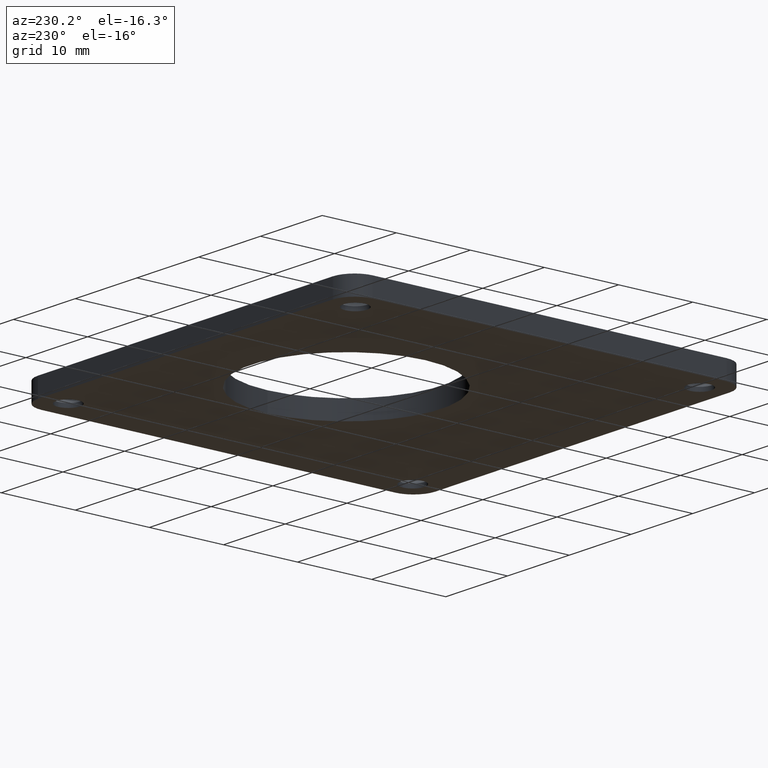
[diagram: clean part render]
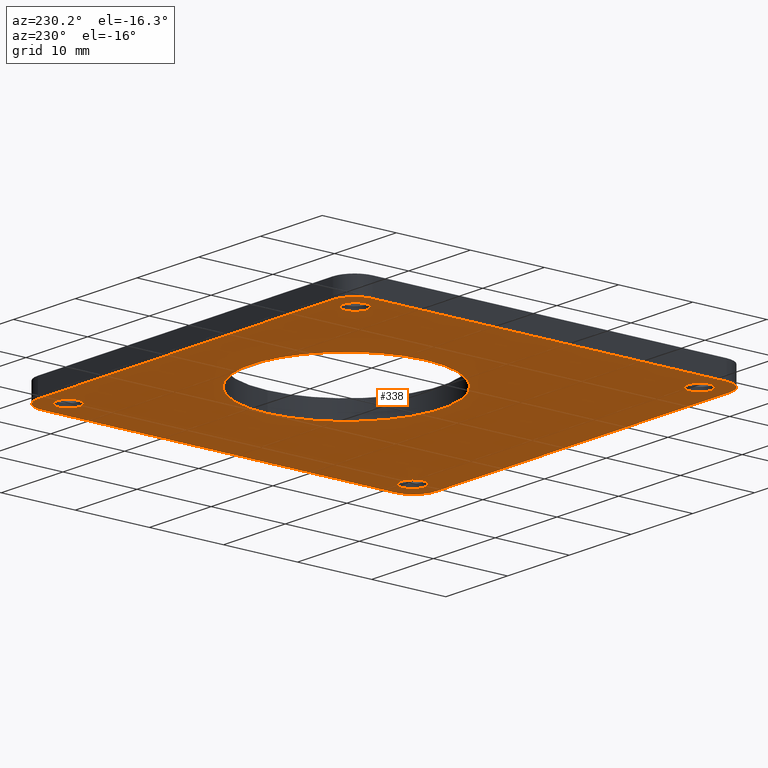
[diagram: same view with one face highlighted and labeled with its STEP entity id]
A machine part, auxiliary view. The second image highlights one B-rep face of the part: STEP entity #338.
In plain terms, the highlighted planar face has unit normal (-0, 0, -1).
Its self-contained STEP definition (entity closure, byte-faithful):
#7 = DIRECTION ( 'NONE',  ( 1.000000000000000000, 0.0000000000000000000, 0.0000000000000000000 ) ) ;
#11 = VECTOR ( 'NONE', #581, 39.37007874015748100 ) ;
#15 = VECTOR ( 'NONE', #700, 39.37007874015748100 ) ;
#17 = ORIENTED_EDGE ( 'NONE', *, *, #53, .F. ) ;
#19 = CARTESIAN_POINT ( 'NONE',  ( -0.9399999999999999500, -1.055000000000000200, -0.04921259842519685300 ) ) ;
#22 = EDGE_CURVE ( 'NONE', #772, #792, #690, .T. ) ;
#23 = DIRECTION ( 'NONE',  ( 0.0000000000000000000, 0.0000000000000000000, 1.000000000000000000 ) ) ;
#38 = CARTESIAN_POINT ( 'NONE',  ( -0.5040000000000000000, 0.2000000000000000900, -0.04921259842519685300 ) ) ;
#39 = DIRECTION ( 'NONE',  ( 0.0000000000000000000, 0.0000000000000000000, 1.000000000000000000 ) ) ;
#53 = EDGE_CURVE ( 'NONE', #259, #779, #760, .T. ) ;
#59 = CARTESIAN_POINT ( 'NONE',  ( 0.9149999999999999200, 0.9149999999999999200, -0.04921259842519683200 ) ) ;
#65 = ORIENTED_EDGE ( 'NONE', *, *, #791, .F. ) ;
#70 = EDGE_CURVE ( 'NONE', #493, #901, #165, .T. ) ;
#77 = EDGE_LOOP ( 'NONE', ( #337, #327 ) ) ;
#82 = VERTEX_POINT ( 'NONE', #673 ) ;
#89 = CARTESIAN_POINT ( 'NONE',  ( 0.9150000000000002600, -0.9150000000000002600, -0.04921259842519683200 ) ) ;
#92 = DIRECTION ( 'NONE',  ( 1.000000000000000000, 0.0000000000000000000, 0.0000000000000000000 ) ) ;
#95 = EDGE_CURVE ( 'NONE', #405, #567, #662, .T. ) ;
#97 = CARTESIAN_POINT ( 'NONE',  ( 0.9399999999999999500, 1.055000000000000200, -0.04921259842519685300 ) ) ;
#106 = AXIS2_PLACEMENT_3D ( 'NONE', #575, #23, #720 ) ;
#114 = EDGE_CURVE ( 'NONE', #853, #405, #919, .T. ) ;
#119 = DIRECTION ( 'NONE',  ( -0.0000000000000000000, -0.0000000000000000000, 1.000000000000000000 ) ) ;
#121 = CARTESIAN_POINT ( 'NONE',  ( 1.054999999999999700, 0.9399999999999999500, -0.04921259842519685300 ) ) ;
#125 = LINE ( 'NONE', #856, #346 ) ;
#126 = CARTESIAN_POINT ( 'NONE',  ( 0.9399999999999999500, -0.9399999999999999500, -0.04921259842519685300 ) ) ;
#127 = EDGE_CURVE ( 'NONE', #382, #293, #540, .T. ) ;
#129 = EDGE_CURVE ( 'NONE', #792, #772, #889, .T. ) ;
#131 = ORIENTED_EDGE ( 'NONE', *, *, #213, .T. ) ;
#137 = EDGE_CURVE ( 'NONE', #82, #872, #258, .T. ) ;
#139 = ORIENTED_EDGE ( 'NONE', *, *, #70, .T. ) ;
#148 = DIRECTION ( 'NONE',  ( -0.0000000000000000000, -0.0000000000000000000, 1.000000000000000000 ) ) ;
#150 = AXIS2_PLACEMENT_3D ( 'NONE', #89, #148, #92 ) ;
#165 = CIRCLE ( 'NONE', #150, 0.06299999999999998700 ) ;
#166 = DIRECTION ( 'NONE',  ( 0.0000000000000000000, 0.0000000000000000000, 1.000000000000000000 ) ) ;
#168 = CARTESIAN_POINT ( 'NONE',  ( 0.9150000000000002600, -0.9150000000000002600, -0.04921259842519683200 ) ) ;
#170 = CARTESIAN_POINT ( 'NONE',  ( -0.9399999999999999500, 0.9399999999999999500, -0.04921259842519685300 ) ) ;
#171 = EDGE_LOOP ( 'NONE', ( #652, #884 ) ) ;
#172 = ORIENTED_EDGE ( 'NONE', *, *, #478, .F. ) ;
#179 = AXIS2_PLACEMENT_3D ( 'NONE', #660, #39, #740 ) ;
#180 = DIRECTION ( 'NONE',  ( -0.0000000000000000000, -0.0000000000000000000, 1.000000000000000000 ) ) ;
#192 = DIRECTION ( 'NONE',  ( 0.0000000000000000000, 0.0000000000000000000, 1.000000000000000000 ) ) ;
#193 = CARTESIAN_POINT ( 'NONE',  ( 0.9399999999999999500, 0.9399999999999999500, -0.04921259842519685300 ) ) ;
#201 = DIRECTION ( 'NONE',  ( 1.000000000000000000, 0.0000000000000000000, 0.0000000000000000000 ) ) ;
#207 = CIRCLE ( 'NONE', #618, 0.5040000000000000000 ) ;
#212 = AXIS2_PLACEMENT_3D ( 'NONE', #168, #469, #7 ) ;
#213 = EDGE_CURVE ( 'NONE', #901, #493, #879, .T. ) ;
#219 = VERTEX_POINT ( 'NONE', #97 ) ;
#224 = FACE_BOUND ( 'NONE', #473, .T. ) ;
#228 = AXIS2_PLACEMENT_3D ( 'NONE', #126, #192, #859 ) ;
#232 = AXIS2_PLACEMENT_3D ( 'NONE', #818, #329, #735 ) ;
#233 = CARTESIAN_POINT ( 'NONE',  ( -0.8520000000000002000, 0.9149999999999999200, -0.04921259842519683200 ) ) ;
#237 = CARTESIAN_POINT ( 'NONE',  ( -0.9399999999999999500, -1.055000000000000200, -0.04921259842519685300 ) ) ;
#248 = CARTESIAN_POINT ( 'NONE',  ( 0.9399999999999999500, -1.054999999999999700, -0.04921259842519685300 ) ) ;
#258 = CIRCLE ( 'NONE', #261, 0.06299999999999998700 ) ;
#259 = VERTEX_POINT ( 'NONE', #657 ) ;
#260 = VECTOR ( 'NONE', #780, 39.37007874015748100 ) ;
#261 = AXIS2_PLACEMENT_3D ( 'NONE', #425, #119, #596 ) ;
#293 = VERTEX_POINT ( 'NONE', #616 ) ;
#295 = CARTESIAN_POINT ( 'NONE',  ( 1.054999999999999500, 0.9399999999999999500, -0.04921259842519685300 ) ) ;
#303 = VERTEX_POINT ( 'NONE', #839 ) ;
#304 = DIRECTION ( 'NONE',  ( -1.000000000000000000, -0.0000000000000000000, -0.0000000000000000000 ) ) ;
#327 = ORIENTED_EDGE ( 'NONE', *, *, #127, .T. ) ;
#329 = DIRECTION ( 'NONE',  ( -0.0000000000000000000, -0.0000000000000000000, 1.000000000000000000 ) ) ;
#331 = EDGE_CURVE ( 'NONE', #872, #82, #773, .T. ) ;
#337 = ORIENTED_EDGE ( 'NONE', *, *, #396, .T. ) ;
#338 = ADVANCED_FACE ( 'NONE', ( #352, #891, #360, #475, #224, #559 ), #549, .T. ) ;
#346 = VECTOR ( 'NONE', #304, 39.37007874015748100 ) ;
#349 = CARTESIAN_POINT ( 'NONE',  ( 0.8520000000000002000, -0.9150000000000002600, -0.04921259842519683200 ) ) ;
#352 = FACE_BOUND ( 'NONE', #77, .T. ) ;
#359 = EDGE_LOOP ( 'NONE', ( #892, #411 ) ) ;
#360 = FACE_BOUND ( 'NONE', #667, .T. ) ;
#382 = VERTEX_POINT ( 'NONE', #38 ) ;
#389 = CARTESIAN_POINT ( 'NONE',  ( 0.0000000000000000000, 0.2000000000000000100, -0.04921259842519685300 ) ) ;
#392 = AXIS2_PLACEMENT_3D ( 'NONE', #765, #722, #698 ) ;
#396 = EDGE_CURVE ( 'NONE', #293, #382, #207, .T. ) ;
#405 = VERTEX_POINT ( 'NONE', #248 ) ;
#411 = ORIENTED_EDGE ( 'NONE', *, *, #137, .T. ) ;
#418 = CIRCLE ( 'NONE', #474, 0.1149999999999998700 ) ;
#425 = CARTESIAN_POINT ( 'NONE',  ( -0.9150000000000002600, 0.9149999999999999200, -0.04921259842519683200 ) ) ;
#437 = CIRCLE ( 'NONE', #783, 0.1149999999999998700 ) ;
#438 = ORIENTED_EDGE ( 'NONE', *, *, #914, .F. ) ;
#442 = AXIS2_PLACEMENT_3D ( 'NONE', #645, #823, #583 ) ;
#449 = CARTESIAN_POINT ( 'NONE',  ( -1.054999999999999700, -0.9399999999999999500, -0.04921259842519685300 ) ) ;
#450 = DIRECTION ( 'NONE',  ( -1.000000000000000000, 0.0000000000000000000, 0.0000000000000000000 ) ) ;
#464 = VERTEX_POINT ( 'NONE', #504 ) ;
#469 = DIRECTION ( 'NONE',  ( -0.0000000000000000000, -0.0000000000000000000, 1.000000000000000000 ) ) ;
#473 = EDGE_LOOP ( 'NONE', ( #650, #907 ) ) ;
#474 = AXIS2_PLACEMENT_3D ( 'NONE', #170, #166, #450 ) ;
#475 = FACE_BOUND ( 'NONE', #171, .T. ) ;
#478 = EDGE_CURVE ( 'NONE', #567, #851, #558, .T. ) ;
#479 = VERTEX_POINT ( 'NONE', #561 ) ;
#493 = VERTEX_POINT ( 'NONE', #349 ) ;
#494 = DIRECTION ( 'NONE',  ( -0.0000000000000000000, -0.0000000000000000000, 1.000000000000000000 ) ) ;
#504 = CARTESIAN_POINT ( 'NONE',  ( -0.9399999999999999500, 1.055000000000000200, -0.04921259842519685300 ) ) ;
#509 = ORIENTED_EDGE ( 'NONE', *, *, #114, .F. ) ;
#514 = CIRCLE ( 'NONE', #179, 0.1149999999999998700 ) ;
#525 = AXIS2_PLACEMENT_3D ( 'NONE', #59, #653, #201 ) ;
#540 = CIRCLE ( 'NONE', #106, 0.5040000000000000000 ) ;
#549 = PLANE ( 'NONE',  #442 ) ;
#558 = LINE ( 'NONE', #295, #15 ) ;
#559 = FACE_OUTER_BOUND ( 'NONE', #719, .T. ) ;
#561 = CARTESIAN_POINT ( 'NONE',  ( 0.9779999999999998700, 0.9149999999999999200, -0.04921259842519683200 ) ) ;
#567 = VERTEX_POINT ( 'NONE', #602 ) ;
#574 = CARTESIAN_POINT ( 'NONE',  ( 0.9780000000000002000, -0.9150000000000002600, -0.04921259842519683200 ) ) ;
#575 = CARTESIAN_POINT ( 'NONE',  ( 0.0000000000000000000, 0.2000000000000000100, -0.04921259842519685300 ) ) ;
#580 = AXIS2_PLACEMENT_3D ( 'NONE', #710, #494, #726 ) ;
#581 = DIRECTION ( 'NONE',  ( 0.0000000000000000000, -1.000000000000000000, 0.0000000000000000000 ) ) ;
#583 = DIRECTION ( 'NONE',  ( -1.000000000000000000, 0.0000000000000000000, 0.0000000000000000000 ) ) ;
#592 = AXIS2_PLACEMENT_3D ( 'NONE', #732, #180, #661 ) ;
#593 = CIRCLE ( 'NONE', #592, 0.06299999999999998700 ) ;
#596 = DIRECTION ( 'NONE',  ( 1.000000000000000000, 0.0000000000000000000, 0.0000000000000000000 ) ) ;
#597 = DIRECTION ( 'NONE',  ( 0.0000000000000000000, 0.0000000000000000000, 1.000000000000000000 ) ) ;
#599 = CIRCLE ( 'NONE', #525, 0.06299999999999998700 ) ;
#602 = CARTESIAN_POINT ( 'NONE',  ( 1.054999999999999500, -0.9399999999999999500, -0.04921259842519685300 ) ) ;
#607 = EDGE_CURVE ( 'NONE', #479, #303, #593, .T. ) ;
#616 = CARTESIAN_POINT ( 'NONE',  ( 0.5040000000000000000, 0.2000000000000000100, -0.04921259842519685300 ) ) ;
#618 = AXIS2_PLACEMENT_3D ( 'NONE', #389, #789, #801 ) ;
#644 = CARTESIAN_POINT ( 'NONE',  ( -1.054999999999999500, 0.9399999999999999500, -0.04921259842519685300 ) ) ;
#645 = CARTESIAN_POINT ( 'NONE',  ( -0.9399999999999999500, 0.9399999999999999500, -0.04921259842519685300 ) ) ;
#650 = ORIENTED_EDGE ( 'NONE', *, *, #129, .T. ) ;
#652 = ORIENTED_EDGE ( 'NONE', *, *, #607, .T. ) ;
#653 = DIRECTION ( 'NONE',  ( -0.0000000000000000000, -0.0000000000000000000, 1.000000000000000000 ) ) ;
#657 = CARTESIAN_POINT ( 'NONE',  ( -1.054999999999999500, 0.9399999999999999500, -0.04921259842519685300 ) ) ;
#660 = CARTESIAN_POINT ( 'NONE',  ( -0.9399999999999999500, -0.9399999999999999500, -0.04921259842519685300 ) ) ;
#661 = DIRECTION ( 'NONE',  ( 1.000000000000000000, 0.0000000000000000000, 0.0000000000000000000 ) ) ;
#662 = CIRCLE ( 'NONE', #228, 0.1149999999999998700 ) ;
#667 = EDGE_LOOP ( 'NONE', ( #131, #139 ) ) ;
#673 = CARTESIAN_POINT ( 'NONE',  ( -0.9780000000000002000, 0.9149999999999999200, -0.04921259842519683200 ) ) ;
#681 = ORIENTED_EDGE ( 'NONE', *, *, #750, .F. ) ;
#690 = CIRCLE ( 'NONE', #580, 0.06299999999999998700 ) ;
#697 = EDGE_CURVE ( 'NONE', #851, #219, #437, .T. ) ;
#698 = DIRECTION ( 'NONE',  ( 1.000000000000000000, 0.0000000000000000000, 0.0000000000000000000 ) ) ;
#700 = DIRECTION ( 'NONE',  ( -0.0000000000000000000, 1.000000000000000000, -0.0000000000000000000 ) ) ;
#710 = CARTESIAN_POINT ( 'NONE',  ( -0.9150000000000002600, -0.9150000000000002600, -0.04921259842519683200 ) ) ;
#719 = EDGE_LOOP ( 'NONE', ( #65, #438, #738, #172, #803, #509, #681, #17 ) ) ;
#720 = DIRECTION ( 'NONE',  ( 1.000000000000000000, 0.0000000000000000000, 0.0000000000000000000 ) ) ;
#722 = DIRECTION ( 'NONE',  ( -0.0000000000000000000, -0.0000000000000000000, 1.000000000000000000 ) ) ;
#726 = DIRECTION ( 'NONE',  ( 1.000000000000000000, 0.0000000000000000000, 0.0000000000000000000 ) ) ;
#732 = CARTESIAN_POINT ( 'NONE',  ( 0.9149999999999999200, 0.9149999999999999200, -0.04921259842519683200 ) ) ;
#735 = DIRECTION ( 'NONE',  ( 1.000000000000000000, 0.0000000000000000000, 0.0000000000000000000 ) ) ;
#738 = ORIENTED_EDGE ( 'NONE', *, *, #697, .F. ) ;
#740 = DIRECTION ( 'NONE',  ( 1.000000000000000000, 0.0000000000000000000, 0.0000000000000000000 ) ) ;
#747 = DIRECTION ( 'NONE',  ( -1.000000000000000000, 0.0000000000000000000, 0.0000000000000000000 ) ) ;
#750 = EDGE_CURVE ( 'NONE', #779, #853, #514, .T. ) ;
#760 = LINE ( 'NONE', #644, #11 ) ;
#765 = CARTESIAN_POINT ( 'NONE',  ( -0.9150000000000002600, -0.9150000000000002600, -0.04921259842519683200 ) ) ;
#772 = VERTEX_POINT ( 'NONE', #825 ) ;
#773 = CIRCLE ( 'NONE', #232, 0.06299999999999998700 ) ;
#779 = VERTEX_POINT ( 'NONE', #449 ) ;
#780 = DIRECTION ( 'NONE',  ( 1.000000000000000000, 0.0000000000000000000, 0.0000000000000000000 ) ) ;
#783 = AXIS2_PLACEMENT_3D ( 'NONE', #193, #597, #747 ) ;
#789 = DIRECTION ( 'NONE',  ( 0.0000000000000000000, 0.0000000000000000000, 1.000000000000000000 ) ) ;
#791 = EDGE_CURVE ( 'NONE', #464, #259, #418, .T. ) ;
#792 = VERTEX_POINT ( 'NONE', #864 ) ;
#801 = DIRECTION ( 'NONE',  ( 1.000000000000000000, 0.0000000000000000000, 0.0000000000000000000 ) ) ;
#803 = ORIENTED_EDGE ( 'NONE', *, *, #95, .F. ) ;
#818 = CARTESIAN_POINT ( 'NONE',  ( -0.9150000000000002600, 0.9149999999999999200, -0.04921259842519683200 ) ) ;
#823 = DIRECTION ( 'NONE',  ( -0.0000000000000000000, 0.0000000000000000000, -1.000000000000000000 ) ) ;
#825 = CARTESIAN_POINT ( 'NONE',  ( -0.9780000000000002000, -0.9150000000000002600, -0.04921259842519683200 ) ) ;
#829 = EDGE_CURVE ( 'NONE', #303, #479, #599, .T. ) ;
#839 = CARTESIAN_POINT ( 'NONE',  ( 0.8519999999999999800, 0.9149999999999999200, -0.04921259842519683200 ) ) ;
#851 = VERTEX_POINT ( 'NONE', #121 ) ;
#853 = VERTEX_POINT ( 'NONE', #237 ) ;
#856 = CARTESIAN_POINT ( 'NONE',  ( -0.9399999999999999500, 1.055000000000000200, -0.04921259842519685300 ) ) ;
#859 = DIRECTION ( 'NONE',  ( 1.000000000000000000, 0.0000000000000000000, 0.0000000000000000000 ) ) ;
#864 = CARTESIAN_POINT ( 'NONE',  ( -0.8520000000000002000, -0.9150000000000002600, -0.04921259842519683200 ) ) ;
#872 = VERTEX_POINT ( 'NONE', #233 ) ;
#879 = CIRCLE ( 'NONE', #212, 0.06299999999999998700 ) ;
#884 = ORIENTED_EDGE ( 'NONE', *, *, #829, .T. ) ;
#889 = CIRCLE ( 'NONE', #392, 0.06299999999999998700 ) ;
#891 = FACE_BOUND ( 'NONE', #359, .T. ) ;
#892 = ORIENTED_EDGE ( 'NONE', *, *, #331, .T. ) ;
#901 = VERTEX_POINT ( 'NONE', #574 ) ;
#907 = ORIENTED_EDGE ( 'NONE', *, *, #22, .T. ) ;
#914 = EDGE_CURVE ( 'NONE', #219, #464, #125, .T. ) ;
#919 = LINE ( 'NONE', #19, #260 ) ;